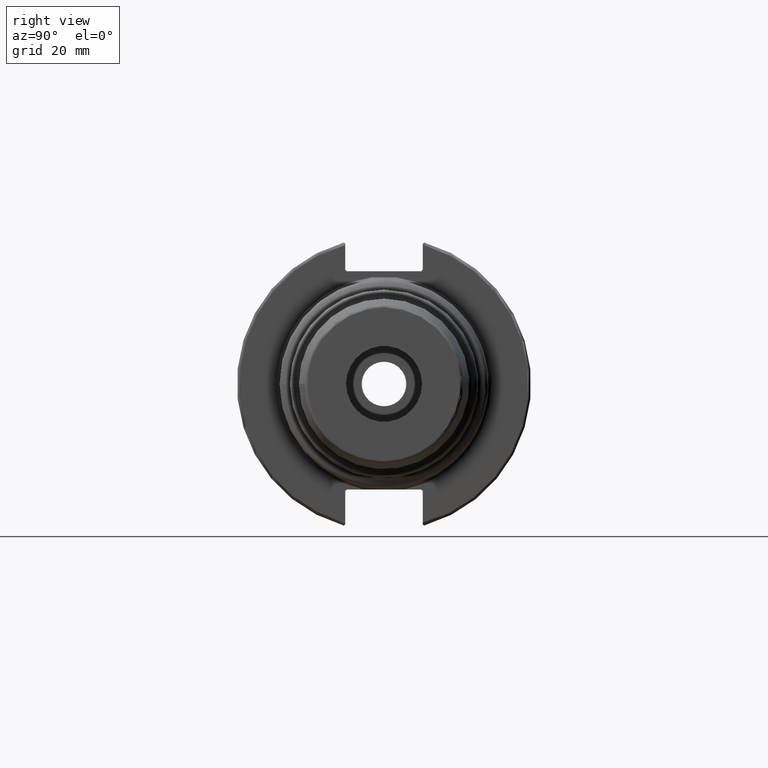
[diagram: clean part render]
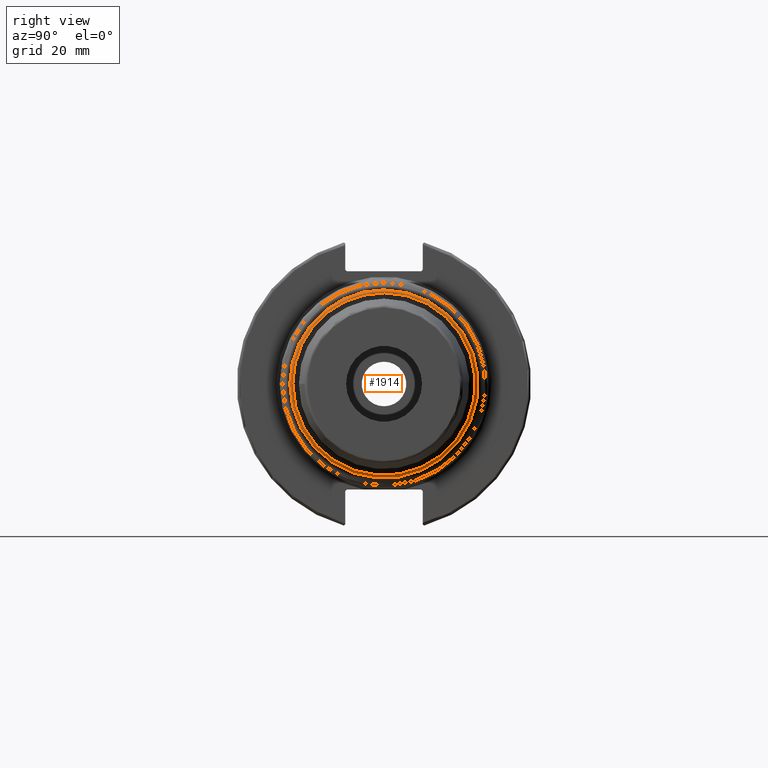
[diagram: same view with one face highlighted and labeled with its STEP entity id]
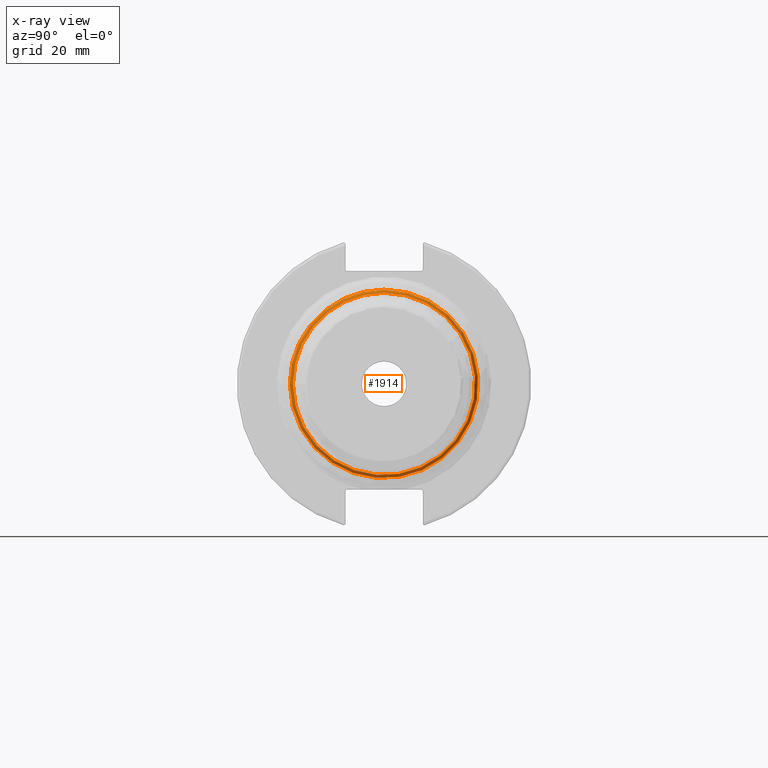
[diagram: x-ray of the same camera — body ghosted, the highlighted face saturated]
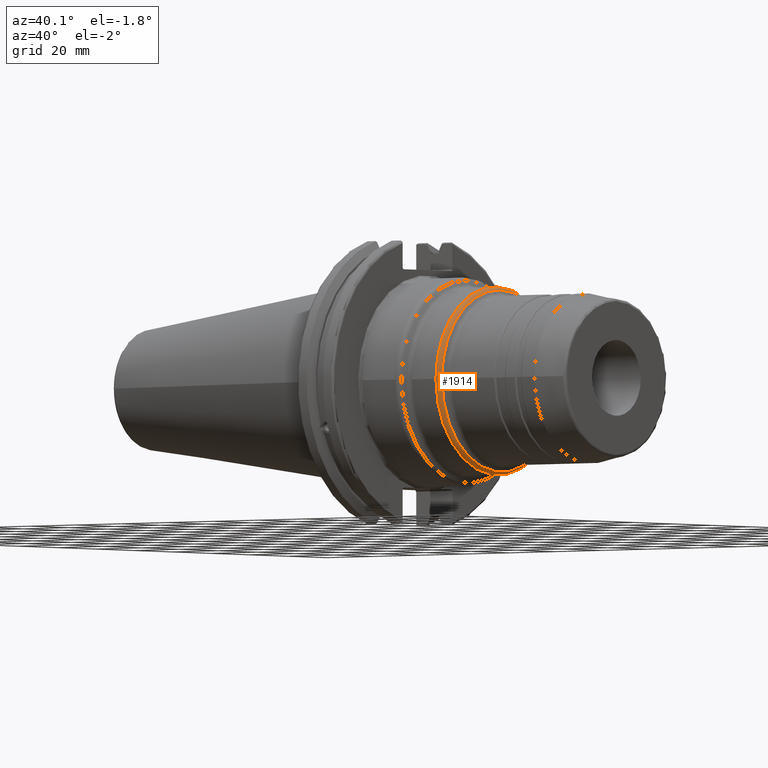
[diagram: same view with one face highlighted and labeled with its STEP entity id]
A machine part, right view. The second image highlights one B-rep face of the part: STEP entity #1914.
The next image is the same camera in x-ray: the body ghosted, the highlighted face saturated — about 0% of this face is hidden behind the body in this view.
A second angle (auxiliary view) of the same face is appended — the face is thin or edge-on in the first view.
In plain terms, the highlighted toroidal blend (fillet) surface has major radius 29.5 mm and minor (blend) radius 2 mm.
Its self-contained STEP definition (entity closure, byte-faithful):
#80=TOROIDAL_SURFACE('',#2110,29.5,2.);
#194=FACE_OUTER_BOUND('',#306,.T.);
#306=EDGE_LOOP('',(#1406,#1407,#1408,#1409,#1410,#1411));
#670=CIRCLE('',#2096,30.5);
#671=CIRCLE('',#2097,30.5);
#677=CIRCLE('',#2105,31.5);
#678=CIRCLE('',#2106,31.5);
#681=CIRCLE('',#2111,2.);
#802=VERTEX_POINT('',#3082);
#803=VERTEX_POINT('',#3084);
#808=VERTEX_POINT('',#3098);
#809=VERTEX_POINT('',#3099);
#1025=EDGE_CURVE('',#803,#802,#670,.T.);
#1026=EDGE_CURVE('',#802,#803,#671,.T.);
#1032=EDGE_CURVE('',#808,#809,#677,.T.);
#1034=EDGE_CURVE('',#809,#808,#678,.T.);
#1038=EDGE_CURVE('',#803,#809,#681,.T.);
#1406=ORIENTED_EDGE('',*,*,#1025,.T.);
#1407=ORIENTED_EDGE('',*,*,#1026,.T.);
#1408=ORIENTED_EDGE('',*,*,#1038,.T.);
#1409=ORIENTED_EDGE('',*,*,#1034,.T.);
#1410=ORIENTED_EDGE('',*,*,#1032,.T.);
#1411=ORIENTED_EDGE('',*,*,#1038,.F.);
#1914=ADVANCED_FACE('',(#194),#80,.T.);
#2096=AXIS2_PLACEMENT_3D('',#3085,#2434,#2435);
#2097=AXIS2_PLACEMENT_3D('',#3086,#2436,#2437);
#2105=AXIS2_PLACEMENT_3D('',#3100,#2452,#2453);
#2106=AXIS2_PLACEMENT_3D('',#3102,#2455,#2456);
#2110=AXIS2_PLACEMENT_3D('',#3109,#2464,#2465);
#2111=AXIS2_PLACEMENT_3D('',#3110,#2466,#2467);
#2434=DIRECTION('center_axis',(-1.,0.,0.));
#2435=DIRECTION('ref_axis',(0.,-1.,3.06161699786838E-17));
#2436=DIRECTION('center_axis',(-1.,0.,0.));
#2437=DIRECTION('ref_axis',(0.,-1.,3.06161699786838E-17));
#2452=DIRECTION('center_axis',(1.,0.,0.));
#2453=DIRECTION('ref_axis',(0.,-1.,1.83697019872103E-16));
#2455=DIRECTION('center_axis',(1.,0.,0.));
#2456=DIRECTION('ref_axis',(0.,-1.,1.83697019872103E-16));
#2464=DIRECTION('center_axis',(1.,0.,0.));
#2465=DIRECTION('ref_axis',(0.,0.,-1.));
#2466=DIRECTION('center_axis',(0.,-1.,-1.22464679914735E-16));
#2467=DIRECTION('ref_axis',(0.,-1.22464679914735E-16,1.));
#3082=CARTESIAN_POINT('',(50.9452994616207,-30.5,-3.73517273739943E-15));
#3084=CARTESIAN_POINT('',(50.9452994616207,-3.73517273739943E-15,30.5));
#3085=CARTESIAN_POINT('Origin',(50.9452994616207,0.,-4.66896592174928E-15));
#3086=CARTESIAN_POINT('Origin',(50.9452994616207,0.,-4.66896592174928E-15));
#3098=CARTESIAN_POINT('',(49.2132486540519,-31.5,-3.85763741731416E-15));
#3099=CARTESIAN_POINT('',(49.2132486540519,-3.85763741731416E-15,31.5));
#3100=CARTESIAN_POINT('Origin',(49.2132486540519,0.,0.));
#3102=CARTESIAN_POINT('Origin',(49.2132486540519,0.,0.));
#3109=CARTESIAN_POINT('Origin',(49.2132486540519,0.,0.));
#3110=CARTESIAN_POINT('Origin',(49.2132486540519,-3.61270805748469E-15,
29.5));